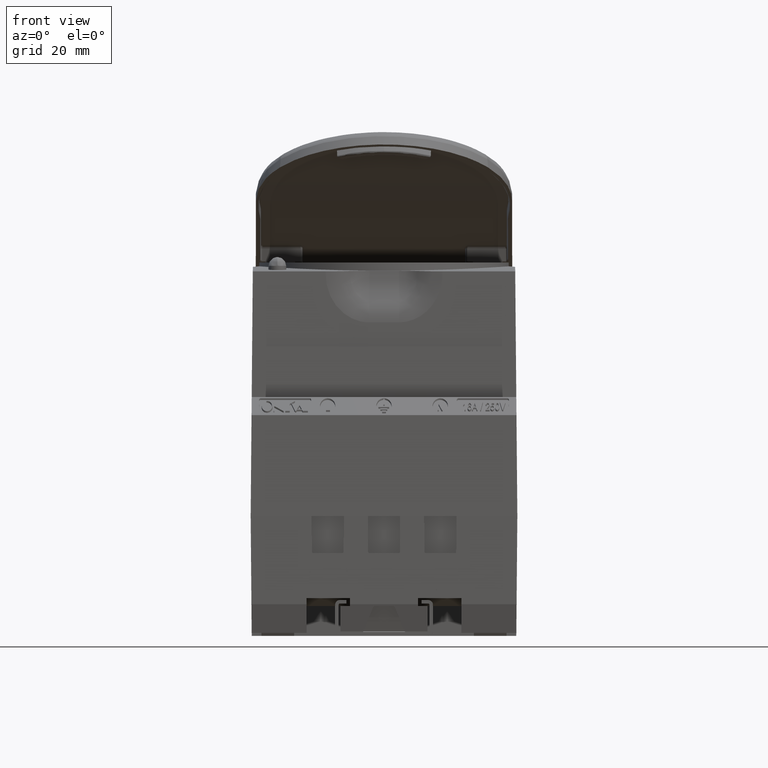
[diagram: clean part render]
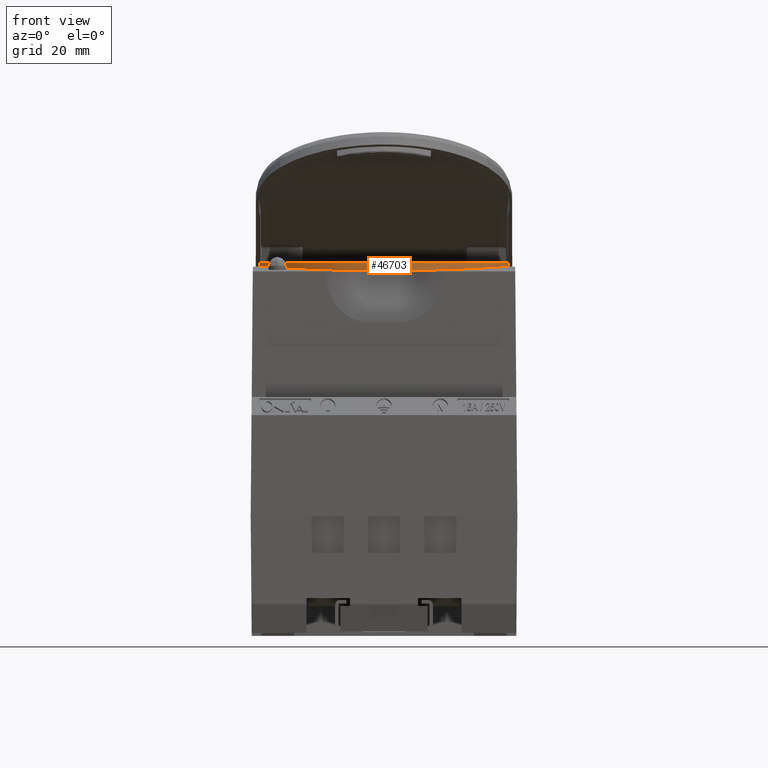
[diagram: same view with one face highlighted and labeled with its STEP entity id]
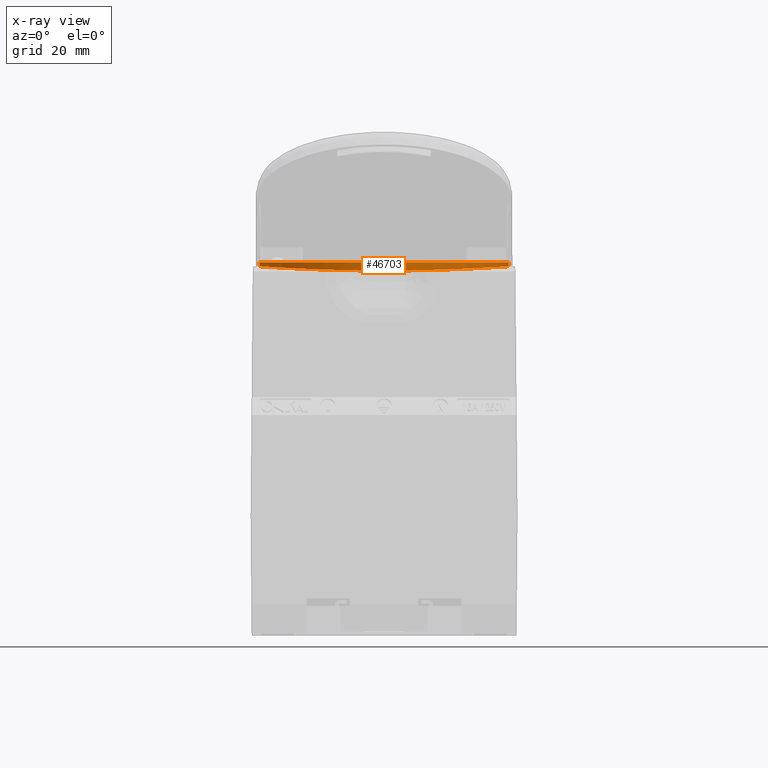
[diagram: x-ray of the same camera — body ghosted, the highlighted face saturated]
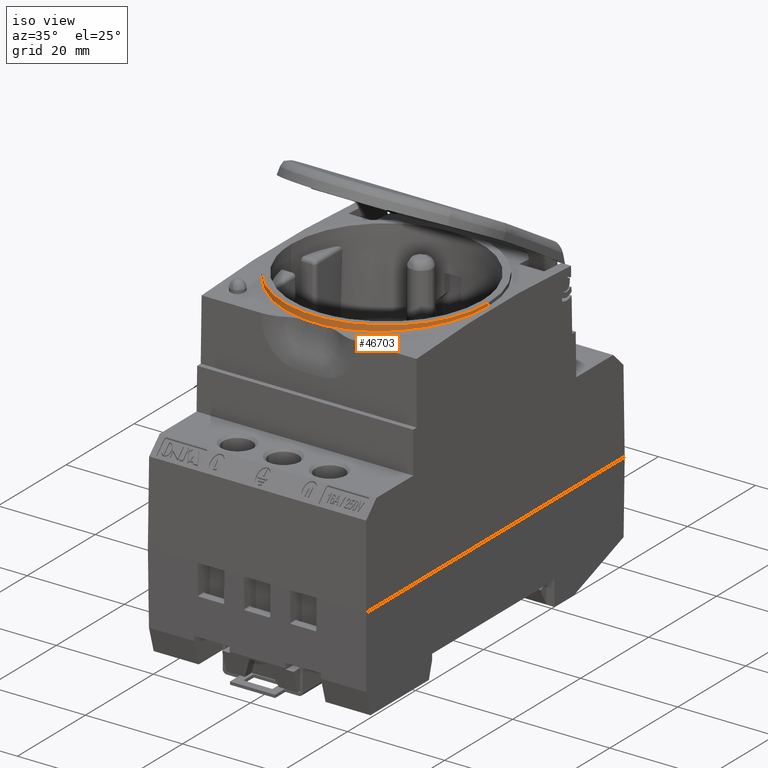
[diagram: same view with one face highlighted and labeled with its STEP entity id]
A machine part, front view. The second image highlights one B-rep face of the part: STEP entity #46703.
The next image is the same camera in x-ray: the body ghosted, the highlighted face saturated — about 0% of this face is hidden behind the body in this view.
A second angle (iso view) of the same face is appended — the face is thin or edge-on in the first view.
In plain terms, the highlighted conical surface has half-angle 0.5 deg.
Its self-contained STEP definition (entity closure, byte-faithful):
#13292 = CIRCLE ( 'NONE', #13296, 21.05000000000000400 ) ;
#13296 = AXIS2_PLACEMENT_3D ( 'NONE', #60188, #60178, #60192 ) ;
#16679 = CARTESIAN_POINT ( 'NONE',  ( 21.05000000000000400, 2.693825304397930600E-015, 17.59999999999983800 ) ) ;
#16685 = CARTESIAN_POINT ( 'NONE',  ( -21.05559193467749100, 1.151964728753273900E-016, 16.95922775369550800 ) ) ;
#16686 = CARTESIAN_POINT ( 'NONE',  ( -21.05000000000000400, 1.151964728753353100E-016, 17.59999999999983800 ) ) ;
#16698 = CARTESIAN_POINT ( 'NONE',  ( 21.05559193467749100, 2.693762799570905100E-015, 16.95922775369550800 ) ) ;
#17218 = FACE_OUTER_BOUND ( 'NONE', #45060, .T. ) ;
#17246 = DIRECTION ( 'NONE',  ( -1.000000000000000000, 0.0000000000000000000, 0.0000000000000000000 ) ) ;
#17247 = DIRECTION ( 'NONE',  ( 0.0000000000000000000, 0.0000000000000000000, -1.000000000000000000 ) ) ;
#17255 = CARTESIAN_POINT ( 'NONE',  ( 0.0000000000000000000, 1.151964728753353100E-016, 16.21058241447257600 ) ) ;
#17413 = B_SPLINE_CURVE_WITH_KNOTS ( 'NONE', 3,
 ( #18527, #18528, #18561, #18549, #18554, #18529, #18522, #18573, #18530, #18552, #18531, #18574, #18532, #18557, #18518, #18534, #18535, #18572, #18519, #18541, #18536, #18548, #18550, #18537, #18538, #18556, #18520, #18539, #18547, #18542, #18545, #18553, #18555, #18558, #18559, #18566, #18562, #18564, #18565, #18571, #18628, #18577, #18605, #18614, #18617, #18620, #18592, #18615, #18602, #18625, #18594, #18591, #18585, #18582, #18616 ),
 .UNSPECIFIED., .F., .F.,
 ( 4, 2, 2, 2, 2, 2, 2, 2, 2, 2, 1, 2, 2, 2, 2, 2, 2, 2, 2, 2, 2, 2, 2, 2, 2, 2, 2, 4 ),
 ( 1.078093754739719000E-019, 0.004115345455832961100, 0.006173018183749443300, 0.008230690911665925600, 0.01234603636749888300, 0.01440370909541536700, 0.01646138182333185100, 0.02057672727916481200, 0.02160556364312304600, 0.02263440000708128200, 0.02469207273499776000, 0.02674974546291423300, 0.02777858182687247000, 0.02880741819083070300, 0.03292276364666364700, 0.03498043637458012800, 0.03600927273853836400, 0.03703810910249660800, 0.04115345455832954800, 0.04321112728624602200, 0.04526880001416249500, 0.04938414546999543600, 0.05349949092582836900, 0.05555716365374483600, 0.05761483638166129500, 0.06173018183749423600, 0.06378785456541069500, 0.06584552729332716900 ),
 .UNSPECIFIED. ) ;
#18258 = EDGE_CURVE ( 'NONE', #45100, #45165, #17413, .T. ) ;
#18518 = CARTESIAN_POINT ( 'NONE',  ( 12.85916825271889300, -16.73521793322766300, 16.49307789905310200 ) ) ;
#18519 = CARTESIAN_POINT ( 'NONE',  ( 10.23188030870552200, -18.41122183951164700, 16.39378389653946400 ) ) ;
#18520 = CARTESIAN_POINT ( 'NONE',  ( 2.754839022190511200, -20.92696859026745300, 16.22856413969144300 ) ) ;
#18522 = CARTESIAN_POINT ( 'NONE',  ( 19.71532173358084700, -7.426558753946836500, 16.86796878233364100 ) ) ;
#18527 = CARTESIAN_POINT ( 'NONE',  ( 21.05559193467749100, 2.693762799570905100E-015, 16.95922775369550800 ) ) ;
#18528 = CARTESIAN_POINT ( 'NONE',  ( 21.05559193467750100, -1.391562711048346800, 16.95922775369551200 ) ) ;
#18529 = CARTESIAN_POINT ( 'NONE',  ( 19.95053241056899700, -6.769033436049569200, 16.88358158108853900 ) ) ;
#18530 = CARTESIAN_POINT ( 'NONE',  ( 18.27640090368720400, -10.54853215963020600, 16.77590555334945300 ) ) ;
#18531 = CARTESIAN_POINT ( 'NONE',  ( 16.71792456473037800, -12.82306319679056400, 16.68553193594058800 ) ) ;
#18532 = CARTESIAN_POINT ( 'NONE',  ( 15.37483483635857700, -14.40662625042081900, 16.61350439495622000 ) ) ;
#18534 = CARTESIAN_POINT ( 'NONE',  ( 11.42108512198523800, -17.69769898047012500, 16.43682062532011300 ) ) ;
#18535 = CARTESIAN_POINT ( 'NONE',  ( 11.12690699444148000, -17.88424238865244200, 16.42572970257233700 ) ) ;
#18536 = CARTESIAN_POINT ( 'NONE',  ( 8.079447271395256500, -19.48592396464518100, 16.32606797499495200 ) ) ;
#18537 = CARTESIAN_POINT ( 'NONE',  ( 5.465975439477844600, -20.34293329546067500, 16.26872013524739600 ) ) ;
#18538 = CARTESIAN_POINT ( 'NONE',  ( 4.793837607019058000, -20.51183026954205200, 16.25719297190297800 ) ) ;
#18539 = CARTESIAN_POINT ( 'NONE',  ( 1.388338353280741600, -21.06108945125033600, 16.21903212449281600 ) ) ;
#18541 = CARTESIAN_POINT ( 'NONE',  ( 9.320513032833218900, -18.89866875528373700, 16.36354690694489700 ) ) ;
#18542 = CARTESIAN_POINT ( 'NONE',  ( -1.360796705916809800, -21.02947414757074500, 16.22126311891111400 ) ) ;
#18545 = CARTESIAN_POINT ( 'NONE',  ( -2.396540904970529500, -20.92805565788531700, 16.22836688241388000 ) ) ;
#18547 = CARTESIAN_POINT ( 'NONE',  ( -0.6721599137907895400, -21.06252577631848100, 16.21893103523035500 ) ) ;
#18548 = CARTESIAN_POINT ( 'NONE',  ( 6.787293355234093700, -19.94966661292610200, 16.29524497609217400 ) ) ;
#18549 = CARTESIAN_POINT ( 'NONE',  ( 20.51797190256452600, -4.778620649743499100, 16.92192163020188600 ) ) ;
#18550 = CARTESIAN_POINT ( 'NONE',  ( 5.798739076349325400, -20.25049889743081600, 16.27499311786508700 ) ) ;
#18552 = CARTESIAN_POINT ( 'NONE',  ( 17.13087686253402000, -12.26524572666216700, 16.70894285222677700 ) ) ;
#18553 = CARTESIAN_POINT ( 'NONE',  ( -2.742364324944159400, -20.88551551364638600, 16.23134110179744000 ) ) ;
#18554 = CARTESIAN_POINT ( 'NONE',  ( 20.35130234596958900, -5.445929549084190100, 16.91052327312483100 ) ) ;
#18555 = CARTESIAN_POINT ( 'NONE',  ( -3.427221194522715600, -20.78405346968998300, 16.23840462285057700 ) ) ;
#18556 = CARTESIAN_POINT ( 'NONE',  ( 4.453770805470602700, -20.58839201864718400, 16.25193184334130700 ) ) ;
#18557 = CARTESIAN_POINT ( 'NONE',  ( 13.91865793651072300, -15.86342453602476800, 16.54109856575923500 ) ) ;
#18558 = CARTESIAN_POINT ( 'NONE',  ( -3.767230792778199600, -20.72505394782030000, 16.24249936583144900 ) ) ;
#18559 = CARTESIAN_POINT ( 'NONE',  ( -5.455386865927136100, -20.38940035794714200, 16.26566737887375400 ) ) ;
#18561 = CARTESIAN_POINT ( 'NONE',  ( 20.91907991088151800, -2.759800897567263900, 16.94955298246866000 ) ) ;
#18562 = CARTESIAN_POINT ( 'NONE',  ( -8.680558767271055100, -19.20124226024907400, 16.34423415241405300 ) ) ;
#18564 = CARTESIAN_POINT ( 'NONE',  ( -9.311722962967909500, -18.90309089690547500, 16.36326873332930300 ) ) ;
#18565 = CARTESIAN_POINT ( 'NONE',  ( -10.53130559758285600, -18.25134977632644600, 16.40370479699161200 ) ) ;
#18566 = CARTESIAN_POINT ( 'NONE',  ( -6.768195935030453500, -19.99194017524460400, 16.29282321337563700 ) ) ;
#18571 = CARTESIAN_POINT ( 'NONE',  ( -11.12115755719234400, -17.89761382579759900, 16.42512069481179900 ) ) ;
#18572 = CARTESIAN_POINT ( 'NONE',  ( 10.53242498097104400, -18.24089133354687000, 16.40421735724599000 ) ) ;
#18573 = CARTESIAN_POINT ( 'NONE',  ( 18.92290330593062500, -9.339106244462003700, 16.81654044723131800 ) ) ;
#18574 = CARTESIAN_POINT ( 'NONE',  ( 15.83789135179452700, -13.89599681877707800, 16.63770486025905300 ) ) ;
#18577 = CARTESIAN_POINT ( 'NONE',  ( -13.89587130524576600, -15.88485315049625500, 16.53999947757225500 ) ) ;
#18582 = CARTESIAN_POINT ( 'NONE',  ( -21.05559193467750500, -0.6957806225114597800, 16.95922775369551500 ) ) ;
#18585 = CARTESIAN_POINT ( 'NONE',  ( -21.02120942074492400, -1.389698822964488000, 16.95680725251132500 ) ) ;
#18591 = CARTESIAN_POINT ( 'NONE',  ( -20.88377323223713200, -2.773815730482502900, 16.94720236977939700 ) ) ;
#18592 = CARTESIAN_POINT ( 'NONE',  ( -18.88511495383370300, -9.339203144612358900, 16.81444352301761200 ) ) ;
#18594 = CARTESIAN_POINT ( 'NONE',  ( -20.78111755364284000, -3.458818751634466200, 16.94004666671995800 ) ) ;
#18602 = CARTESIAN_POINT ( 'NONE',  ( -19.97747367839166100, -6.795008624605690000, 16.88497797624181400 ) ) ;
#18605 = CARTESIAN_POINT ( 'NONE',  ( -15.86240013893973700, -13.92020636523892700, 16.63771413707862800 ) ) ;
#18614 = CARTESIAN_POINT ( 'NONE',  ( -16.73460097449634500, -12.85583430409846700, 16.68581759656777300 ) ) ;
#18615 = CARTESIAN_POINT ( 'NONE',  ( -19.18410658532663900, -8.708088399143868200, 16.83349497851780500 ) ) ;
#18616 = CARTESIAN_POINT ( 'NONE',  ( -21.05559193467749100, 1.151964728753273900E-016, 16.95922775369550800 ) ) ;
#18617 = CARTESIAN_POINT ( 'NONE',  ( -17.87869911108223400, -11.14613035664260100, 16.75263839124720600 ) ) ;
#18620 = CARTESIAN_POINT ( 'NONE',  ( -18.23276672650123900, -10.55695736757775000, 16.77404024731163900 ) ) ;
#18625 = CARTESIAN_POINT ( 'NONE',  ( -20.37620995922970500, -5.482554988971329200, 16.91216099878746300 ) ) ;
#18628 = CARTESIAN_POINT ( 'NONE',  ( -12.83234072251752500, -16.75477826539547300, 16.49196364075585900 ) ) ;
#21821 = LINE ( 'NONE', #21822, #29039 ) ;
#21822 = CARTESIAN_POINT ( 'NONE',  ( 21.06212526357505500, 2.694562901603114500E-015, 16.21058241447257600 ) ) ;
#21828 = DIRECTION ( 'NONE',  ( 0.008726535498373573900, 1.068692376572895100E-018, -0.9999619230641713100 ) ) ;
#23389 = LINE ( 'NONE', #23392, #29143 ) ;
#23392 = CARTESIAN_POINT ( 'NONE',  ( -21.06212526357505500, 1.151964728753353100E-016, 16.21058241447257600 ) ) ;
#23419 = DIRECTION ( 'NONE',  ( -0.008726535498373573900, 0.0000000000000000000, -0.9999619230641713100 ) ) ;
#26506 = ORIENTED_EDGE ( 'NONE', *, *, #47087, .T. ) ;
#26520 = ORIENTED_EDGE ( 'NONE', *, *, #18258, .F. ) ;
#26536 = ORIENTED_EDGE ( 'NONE', *, *, #53565, .T. ) ;
#26588 = ORIENTED_EDGE ( 'NONE', *, *, #47041, .F. ) ;
#28627 = AXIS2_PLACEMENT_3D ( 'NONE', #17255, #17247, #17246 ) ;
#28650 = CONICAL_SURFACE ( 'NONE', #28627, 21.06212526357505500, 0.008726646259971286900 ) ;
#29039 = VECTOR ( 'NONE', #21828, 1000.000000000000000 ) ;
#29143 = VECTOR ( 'NONE', #23419, 1000.000000000000000 ) ;
#45060 = EDGE_LOOP ( 'NONE', ( #26588, #26536, #26506, #26520 ) ) ;
#45100 = VERTEX_POINT ( 'NONE', #16698 ) ;
#45137 = VERTEX_POINT ( 'NONE', #16686 ) ;
#45149 = VERTEX_POINT ( 'NONE', #16679 ) ;
#45165 = VERTEX_POINT ( 'NONE', #16685 ) ;
#46703 = ADVANCED_FACE ( 'NONE', ( #17218 ), #28650, .T. ) ;
#47041 = EDGE_CURVE ( 'NONE', #45149, #45100, #21821, .T. ) ;
#47087 = EDGE_CURVE ( 'NONE', #45137, #45165, #23389, .T. ) ;
#53565 = EDGE_CURVE ( 'NONE', #45149, #45137, #13292, .T. ) ;
#60178 = DIRECTION ( 'NONE',  ( 0.0000000000000000000, 0.0000000000000000000, -1.000000000000000000 ) ) ;
#60188 = CARTESIAN_POINT ( 'NONE',  ( 0.0000000000000000000, 1.151964728753353100E-016, 17.59999999999983800 ) ) ;
#60192 = DIRECTION ( 'NONE',  ( -1.000000000000000000, 0.0000000000000000000, 0.0000000000000000000 ) ) ;